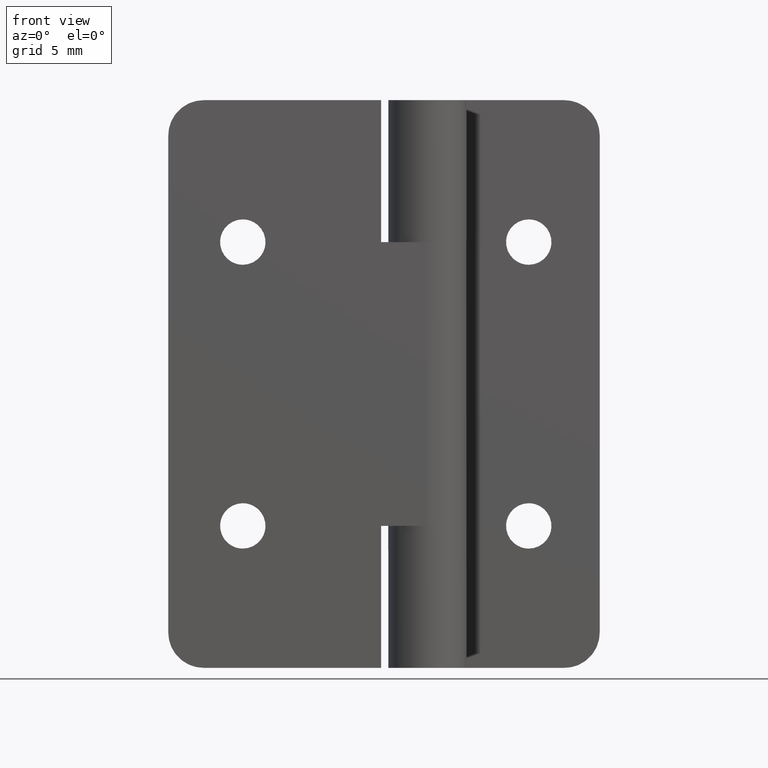
[diagram: clean part render]
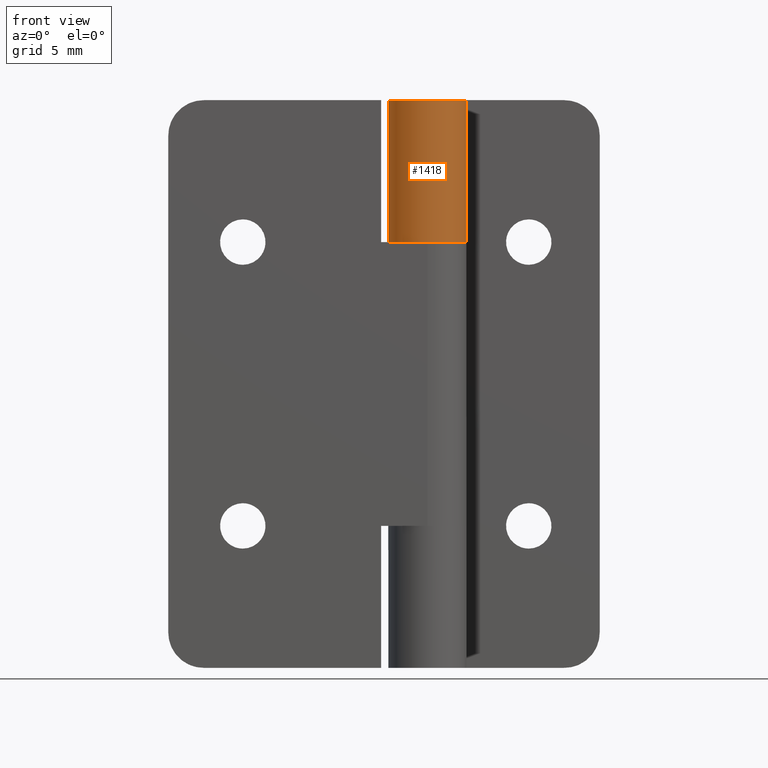
[diagram: same view with one face highlighted and labeled with its STEP entity id]
A machine part, front view. The second image highlights one B-rep face of the part: STEP entity #1418.
In plain terms, the highlighted face is a freeform B-spline surface patch.
Its self-contained STEP definition (entity closure, byte-faithful):
#751=CARTESIAN_POINT('',(2.750000000000000,0.0,30.0));
#752=VERTEX_POINT('',#751);
#758=CARTESIAN_POINT('',(1.100000999999886,2.520416195789745,30.0));
#759=VERTEX_POINT('',#758);
#760=CARTESIAN_POINT('',(2.750000000000000,0.0,30.0));
#761=CARTESIAN_POINT('',(2.750000000000000,-2.049583389851374,30.0));
#762=CARTESIAN_POINT('',(0.785893672075470,-2.635312341296897,30.0));
#763=CARTESIAN_POINT('',(-1.178212655849060,-3.221041292742418,30.0));
#764=CARTESIAN_POINT('',(-2.300815371775806,-1.506236576703725,30.0));
#765=CARTESIAN_POINT('',(-3.423418087702552,0.208568139334968,30.0));
#766=CARTESIAN_POINT('',(-2.100945483924616,1.774409218184114,30.0));
#767=CARTESIAN_POINT('',(-0.778472880146680,3.340250297033261,30.0));
#768=CARTESIAN_POINT('',(1.100000999999885,2.520416195789746,30.0));
#776=(BOUNDED_CURVE()B_SPLINE_CURVE(2,(#760,#761,#762,#763,#764,#765,#766,#767,#768),.UNSPECIFIED.,.F.,.U.)B_SPLINE_CURVE_WITH_KNOTS((3,2,2,2,3),(0.0,0.250000000000000,0.500000000000000,0.750000000000000,1.0),.UNSPECIFIED.)CURVE()GEOMETRIC_REPRESENTATION_ITEM()RATIONAL_B_SPLINE_CURVE((1.0,0.801804064943036,1.0,0.801804064943036,1.0,0.801804064943036,1.0,0.801804064943036,1.0))REPRESENTATION_ITEM(''));
#777=EDGE_CURVE('',#752,#759,#776,.T.);
#1140=CARTESIAN_POINT('',(1.100000999999890,2.520416195789750,40.0));
#1141=VERTEX_POINT('',#1140);
#1147=CARTESIAN_POINT('',(2.750000000000000,0.0,40.0));
#1148=VERTEX_POINT('',#1147);
#1149=CARTESIAN_POINT('',(2.750000000000000,0.0,40.0));
#1150=CARTESIAN_POINT('',(2.750000000000000,-2.049583389851374,40.0));
#1151=CARTESIAN_POINT('',(0.785893672075469,-2.635312341296897,40.0));
#1152=CARTESIAN_POINT('',(-1.178212655849061,-3.221041292742419,40.0));
#1153=CARTESIAN_POINT('',(-2.300815371775807,-1.506236576703725,40.0));
#1154=CARTESIAN_POINT('',(-3.423418087702552,0.208568139334970,40.0));
#1155=CARTESIAN_POINT('',(-2.100945483924615,1.774409218184116,40.0));
#1156=CARTESIAN_POINT('',(-0.778472880146677,3.340250297033261,40.0));
#1157=CARTESIAN_POINT('',(1.100000999999887,2.520416195789744,40.0));
#1165=(BOUNDED_CURVE()B_SPLINE_CURVE(2,(#1149,#1150,#1151,#1152,#1153,#1154,#1155,#1156,#1157),.UNSPECIFIED.,.F.,.U.)B_SPLINE_CURVE_WITH_KNOTS((3,2,2,2,3),(0.0,0.250000000000000,0.500000000000000,0.750000000000000,1.0),.UNSPECIFIED.)CURVE()GEOMETRIC_REPRESENTATION_ITEM()RATIONAL_B_SPLINE_CURVE((1.0,0.801804064943036,1.0,0.801804064943036,1.0,0.801804064943036,1.0,0.801804064943036,1.0))REPRESENTATION_ITEM(''));
#1166=EDGE_CURVE('',#1148,#1141,#1165,.T.);
#1189=CARTESIAN_POINT('',(2.750000000000000,0.0,40.0));
#1190=CARTESIAN_POINT('',(2.750000000000000,0.0,30.0));
#1191=QUASI_UNIFORM_CURVE('',1,(#1189,#1190),.UNSPECIFIED.,.F.,.U.);
#1192=EDGE_CURVE('',#1148,#752,#1191,.T.);
#1386=CARTESIAN_POINT('',(1.121953616735632,2.510721028289250,40.250000000000007));
#1387=CARTESIAN_POINT('',(1.121953616735632,2.510721028289250,29.743749999999999));
#1388=CARTESIAN_POINT('',(-1.817723009866463,3.824359933642559,40.250000000000007));
#1389=CARTESIAN_POINT('',(-1.817723009866463,3.824359933642559,29.743749999999991));
#1390=CARTESIAN_POINT('',(-2.655322099962318,0.715377205012643,40.250000000000007));
#1391=CARTESIAN_POINT('',(-2.655322099962318,0.715377205012643,29.743749999999999));
#1392=CARTESIAN_POINT('',(-3.492921190058173,-2.393605523617272,40.250000000000007));
#1393=CARTESIAN_POINT('',(-3.492921190058173,-2.393605523617272,29.743749999999991));
#1394=CARTESIAN_POINT('',(-0.291185832301419,-2.734540329025506,40.250000000000007));
#1395=CARTESIAN_POINT('',(-0.291185832301419,-2.734540329025506,29.743749999999999));
#1396=CARTESIAN_POINT('',(2.910549525455335,-3.075475134433741,40.250000000000007));
#1397=CARTESIAN_POINT('',(2.910549525455335,-3.075475134433741,29.743749999999991));
#1398=CARTESIAN_POINT('',(2.746425099769051,0.140175501991439,40.250000000000007));
#1399=CARTESIAN_POINT('',(2.746425099769051,0.140175501991439,29.743749999999999));
#1407=(BOUNDED_SURFACE()B_SPLINE_SURFACE(1,2,((#1386,#1388,#1390,#1392,#1394,#1396,#1398),(#1387,#1389,#1391,#1393,#1395,#1397,#1399)),.UNSPECIFIED.,.F.,.F.,.U.)B_SPLINE_SURFACE_WITH_KNOTS((2,2),(3,2,2,3),(0.0,10.506250000000010),(0.0,5.071069458700497,10.142138917400990,15.213208376101489),.UNSPECIFIED.)GEOMETRIC_REPRESENTATION_ITEM()RATIONAL_B_SPLINE_SURFACE(((1.0,0.649448048330184,1.0,0.649448048330184,1.0,0.649448048330184,1.0),(1.0,0.649448048330184,1.0,0.649448048330184,1.0,0.649448048330184,1.0)))REPRESENTATION_ITEM('')SURFACE());
#1408=ORIENTED_EDGE('',*,*,#777,.F.);
#1409=ORIENTED_EDGE('',*,*,#1192,.F.);
#1410=ORIENTED_EDGE('',*,*,#1166,.T.);
#1411=CARTESIAN_POINT('',(1.100000999999890,2.520416195789750,40.0));
#1412=CARTESIAN_POINT('',(1.100000999999886,2.520416195789745,30.0));
#1413=QUASI_UNIFORM_CURVE('',1,(#1411,#1412),.UNSPECIFIED.,.F.,.U.);
#1414=EDGE_CURVE('',#1141,#759,#1413,.T.);
#1415=ORIENTED_EDGE('',*,*,#1414,.T.);
#1416=EDGE_LOOP('',(#1408,#1409,#1410,#1415));
#1417=FACE_OUTER_BOUND('',#1416,.T.);
#1418=ADVANCED_FACE('',(#1417),#1407,.T.);